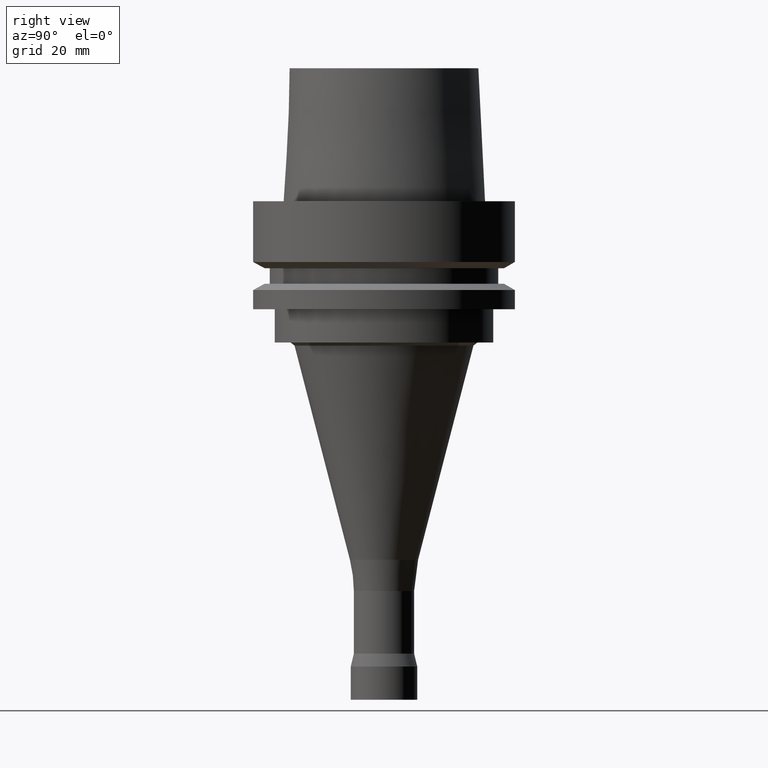
[diagram: clean part render]
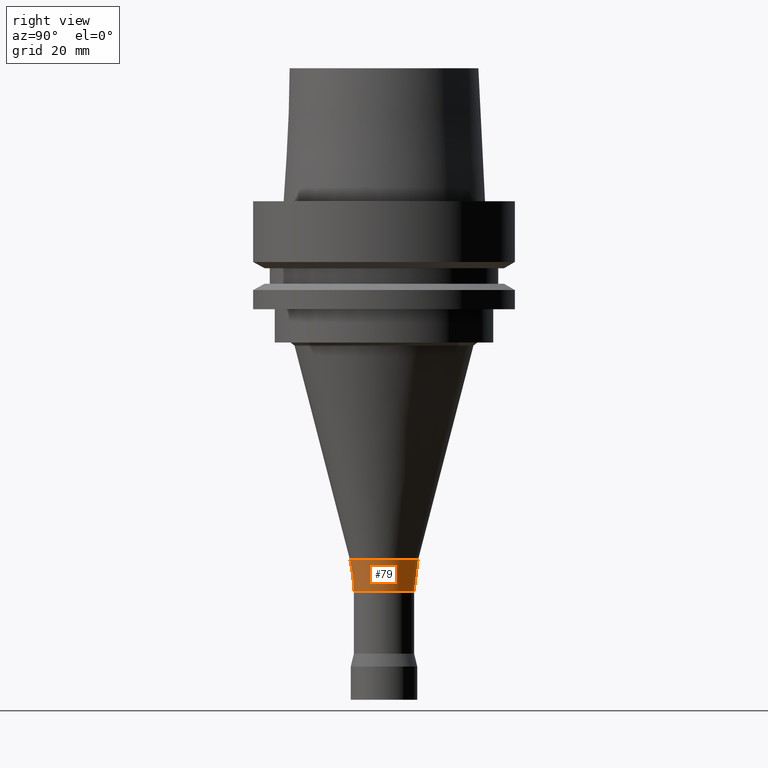
[diagram: same view with one face highlighted and labeled with its STEP entity id]
A machine part, right view. The second image highlights one B-rep face of the part: STEP entity #79.
In plain terms, the highlighted conical surface has half-angle 7.247 deg.
Its self-contained STEP definition (entity closure, byte-faithful):
#79=ADVANCED_FACE('',(#107,#108),#109,.T.);
#107=FACE_BOUND('',#165,.T.);
#108=FACE_BOUND('',#166,.T.);
#109=CONICAL_SURFACE('',#167,7.72734792439161,0.126478116566078);
#165=EDGE_LOOP('',(#231));
#166=EDGE_LOOP('',(#232));
#167=AXIS2_PLACEMENT_3D('',#233,#234,#235);
#231=ORIENTED_EDGE('',*,*,#311,.F.);
#232=ORIENTED_EDGE('',*,*,#314,.T.);
#233=CARTESIAN_POINT('',(5.51462727967363E-015,1.10292545593473E-014,-90.0606980480107));
#234=DIRECTION('',(-6.12323399573677E-017,-1.22464679914735E-016,1.0));
#235=DIRECTION('',(-1.23259516440783E-032,1.0,1.22464679914735E-016));
#311=EDGE_CURVE('',#331,#331,#332,.T.);
#314=EDGE_CURVE('',#337,#337,#338,.T.);
#331=VERTEX_POINT('',#369);
#332=CIRCLE('',#370,7.25);
#337=VERTEX_POINT('',#375);
#338=CIRCLE('',#376,8.20469584878323);
#369=CARTESIAN_POINT('',(5.74449397936503E-015,7.25000000000001,-93.81470614));
#370=AXIS2_PLACEMENT_3D('',#408,#409,#410);
#375=CARTESIAN_POINT('',(5.28476057998223E-015,8.20469584878324,-86.3066899560214));
#376=AXIS2_PLACEMENT_3D('',#417,#418,#419);
#408=CARTESIAN_POINT('',(5.74449397936503E-015,1.14889879587301E-014,-93.81470614));
#409=DIRECTION('',(6.12323399573677E-017,1.22464679914735E-016,-1.0));
#410=DIRECTION('',(-1.23259516440783E-032,1.0,1.22464679914735E-016));
#417=CARTESIAN_POINT('',(5.28476057998223E-015,1.05695211599645E-014,-86.3066899560214));
#418=DIRECTION('',(6.12323399573677E-017,1.22464679914735E-016,-1.0));
#419=DIRECTION('',(-1.23259516440783E-032,1.0,1.22464679914735E-016));